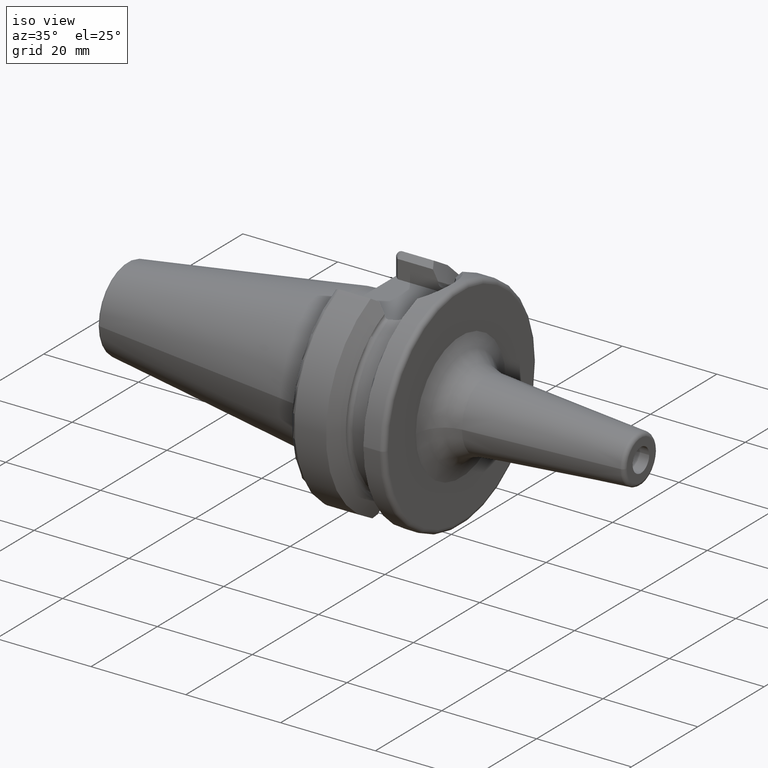
[diagram: clean part render]
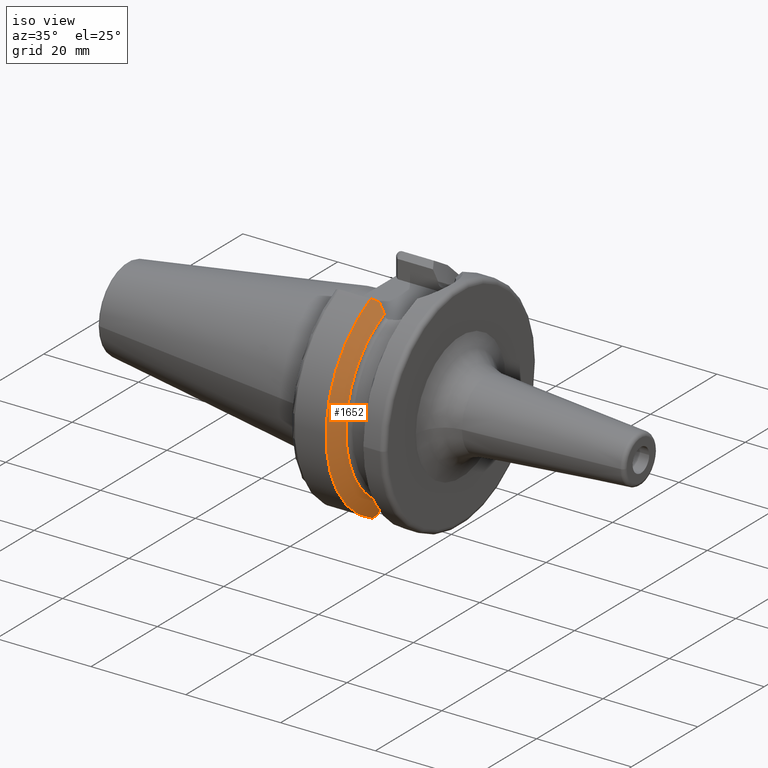
[diagram: same view with one face highlighted and labeled with its STEP entity id]
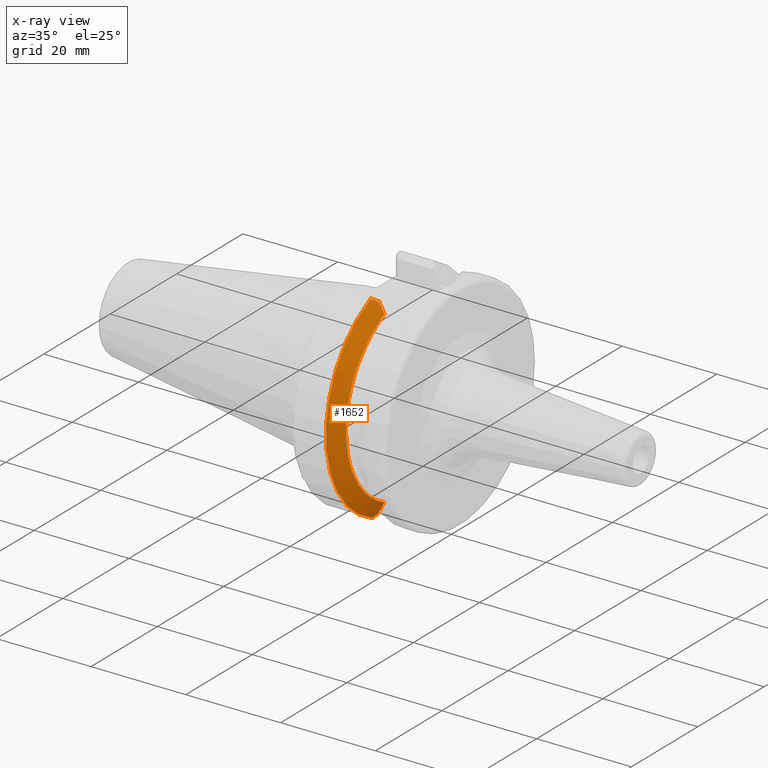
[diagram: x-ray of the same camera — body ghosted, the highlighted face saturated]
A machine part, iso view. The second image highlights one B-rep face of the part: STEP entity #1652.
The next image is the same camera in x-ray: the body ghosted, the highlighted face saturated — about 1% of this face is hidden behind the body in this view.
In plain terms, the highlighted conical surface has half-angle 60 deg.
Its self-contained STEP definition (entity closure, byte-faithful):
#185=CARTESIAN_POINT('',(1.15625E1,0.E0,0.E0));
#186=DIRECTION('',(1.E0,0.E0,0.E0));
#187=DIRECTION('',(0.E0,-4.108295537893E-1,9.117121682490E-1));
#188=AXIS2_PLACEMENT_3D('',#185,#186,#187);
#190=CARTESIAN_POINT('',(9.650924158743E0,0.E0,0.E0));
#191=DIRECTION('',(1.E0,0.E0,0.E0));
#192=DIRECTION('',(0.E0,-4.135970895862E-1,9.104600197075E-1));
#193=AXIS2_PLACEMENT_3D('',#190,#191,#192);
#262=CARTESIAN_POINT('',(9.650924158743E0,-9.014912704843E0,-2.114879308434E1));
#263=CARTESIAN_POINT('',(9.741215736396E0,-8.858523104853E0,-2.104545109677E1));
#264=CARTESIAN_POINT('',(9.919221126355E0,-8.548814943786E0,-2.084079645905E1));
#265=CARTESIAN_POINT('',(1.009206903030E1,-8.245248073975E0,-2.064019997638E1));
#266=CARTESIAN_POINT('',(1.017720370416E1,-8.095E0,-2.054091629899E1));
#272=CARTESIAN_POINT('',(1.1155E1,-8.095E0,-1.870865212813E1));
#273=CARTESIAN_POINT('',(1.099795578230E1,-8.095E0,-1.900503145087E1));
#274=CARTESIAN_POINT('',(1.067792752134E1,-8.095E0,-1.960677863313E1));
#275=CARTESIAN_POINT('',(1.034607361255E1,-8.095E0,-2.022653130930E1));
#276=CARTESIAN_POINT('',(1.017720370416E1,-8.095E0,-2.054091629899E1));
#365=CARTESIAN_POINT('',(1.15625E1,-8.084736776791E0,-1.794163255419E1));
#366=CARTESIAN_POINT('',(1.149487170181E1,-8.088145487832E0,-1.806857530355E1));
#367=CARTESIAN_POINT('',(1.135932539469E1,-8.093276332983E0,-1.832336899895E1));
#368=CARTESIAN_POINT('',(1.122320355344E1,-8.095E0,-1.857993600428E1));
#369=CARTESIAN_POINT('',(1.1155E1,-8.095E0,-1.870865212813E1));
#476=CARTESIAN_POINT('',(1.1155E1,-8.095E0,1.870865212813E1));
#477=CARTESIAN_POINT('',(1.122320355344E1,-8.095E0,1.857993600428E1));
#478=CARTESIAN_POINT('',(1.135932539469E1,-8.093276332983E0,1.832336899895E1));
#479=CARTESIAN_POINT('',(1.149487170181E1,-8.088145487832E0,1.806857530355E1));
#480=CARTESIAN_POINT('',(1.15625E1,-8.084736776791E0,1.794163255419E1));
#558=CARTESIAN_POINT('',(1.045597922678E1,-8.095E0,2.002101583337E1));
#559=CARTESIAN_POINT('',(1.057548285870E1,-8.095E0,1.979775066590E1));
#560=CARTESIAN_POINT('',(1.081149734599E1,-8.095E0,1.935576218154E1));
#561=CARTESIAN_POINT('',(1.104150413363E1,-8.095E0,1.892284548399E1));
#562=CARTESIAN_POINT('',(1.1155E1,-8.095E0,1.870865212813E1));
#572=CARTESIAN_POINT('',(1.045597922678E1,-8.095E0,2.002101583337E1));
#573=CARTESIAN_POINT('',(1.032788938418E1,-8.323259168190E0,2.016803144927E1));
#574=CARTESIAN_POINT('',(1.006562496736E1,-8.787118359367E0,2.046679072902E1));
#575=CARTESIAN_POINT('',(9.791185641443E0,-9.265657075205E0,2.077500469739E1));
#576=CARTESIAN_POINT('',(9.650924158743E0,-9.508597089586E0,2.093147585308E1));
#1190=CARTESIAN_POINT('',(1.15625E1,-8.084736776791E0,1.794163255419E1));
#1191=CARTESIAN_POINT('',(1.15625E1,-8.084736776791E0,-1.794163255419E1));
#1192=VERTEX_POINT('',#1190);
#1193=VERTEX_POINT('',#1191);
#1294=VERTEX_POINT('',#558);
#1295=VERTEX_POINT('',#562);
#1300=VERTEX_POINT('',#272);
#1301=VERTEX_POINT('',#276);
#1304=CARTESIAN_POINT('',(9.650924158743E0,-9.508597089586E0,2.093147585308E1));
#1305=CARTESIAN_POINT('',(9.650924158743E0,-9.014912704843E0,
-2.114879308434E1));
#1306=VERTEX_POINT('',#1304);
#1307=VERTEX_POINT('',#1305);
#1629=CARTESIAN_POINT('',(1.060671207937E1,0.E0,0.E0));
#1630=DIRECTION('',(-1.E0,0.E0,0.E0));
#1631=DIRECTION('',(0.E0,1.E0,0.E0));
#1632=AXIS2_PLACEMENT_3D('',#1629,#1630,#1631);
#1633=CONICAL_SURFACE('',#1632,2.133452676021E1,6.E1);
#1635=ORIENTED_EDGE('',*,*,#1634,.T.);
#1637=ORIENTED_EDGE('',*,*,#1636,.T.);
#1639=ORIENTED_EDGE('',*,*,#1638,.T.);
#1641=ORIENTED_EDGE('',*,*,#1640,.F.);
#1643=ORIENTED_EDGE('',*,*,#1642,.F.);
#1645=ORIENTED_EDGE('',*,*,#1644,.F.);
#1647=ORIENTED_EDGE('',*,*,#1646,.T.);
#1649=ORIENTED_EDGE('',*,*,#1648,.T.);
#1650=EDGE_LOOP('',(#1635,#1637,#1639,#1641,#1643,#1645,#1647,#1649));
#1651=FACE_OUTER_BOUND('',#1650,.F.);
#1652=ADVANCED_FACE('',(#1651),#1633,.T.);
#189=CIRCLE('',#188,1.967905352042E1);
#194=CIRCLE('',#193,2.299E1);
#267=B_SPLINE_CURVE_WITH_KNOTS('',3,(#262,#263,#264,#265,#266),.UNSPECIFIED.,
.F.,.F.,(4,1,4),(0.E0,5.E-1,1.E0),.UNSPECIFIED.);
#277=B_SPLINE_CURVE_WITH_KNOTS('',3,(#272,#273,#274,#275,#276),.UNSPECIFIED.,
.F.,.F.,(4,1,4),(0.E0,5.E-1,1.E0),.UNSPECIFIED.);
#370=B_SPLINE_CURVE_WITH_KNOTS('',3,(#365,#366,#367,#368,#369),.UNSPECIFIED.,
.F.,.F.,(4,1,4),(0.E0,5.E-1,1.E0),.UNSPECIFIED.);
#481=B_SPLINE_CURVE_WITH_KNOTS('',3,(#476,#477,#478,#479,#480),.UNSPECIFIED.,
.F.,.F.,(4,1,4),(0.E0,5.E-1,1.E0),.UNSPECIFIED.);
#563=B_SPLINE_CURVE_WITH_KNOTS('',3,(#558,#559,#560,#561,#562),.UNSPECIFIED.,
.F.,.F.,(4,1,4),(0.E0,5.E-1,1.E0),.UNSPECIFIED.);
#577=B_SPLINE_CURVE_WITH_KNOTS('',3,(#572,#573,#574,#575,#576),.UNSPECIFIED.,
.F.,.F.,(4,1,4),(0.E0,5.E-1,1.E0),.UNSPECIFIED.);
#1634=EDGE_CURVE('',#1192,#1193,#189,.T.);
#1636=EDGE_CURVE('',#1193,#1300,#370,.T.);
#1638=EDGE_CURVE('',#1300,#1301,#277,.T.);
#1640=EDGE_CURVE('',#1307,#1301,#267,.T.);
#1642=EDGE_CURVE('',#1306,#1307,#194,.T.);
#1644=EDGE_CURVE('',#1294,#1306,#577,.T.);
#1646=EDGE_CURVE('',#1294,#1295,#563,.T.);
#1648=EDGE_CURVE('',#1295,#1192,#481,.T.);